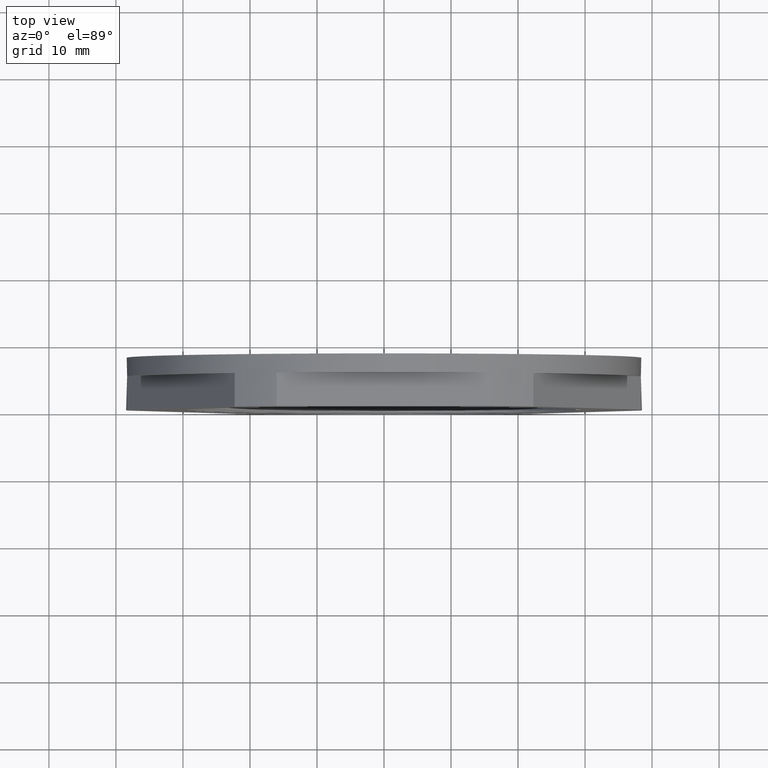
[diagram: clean part render]
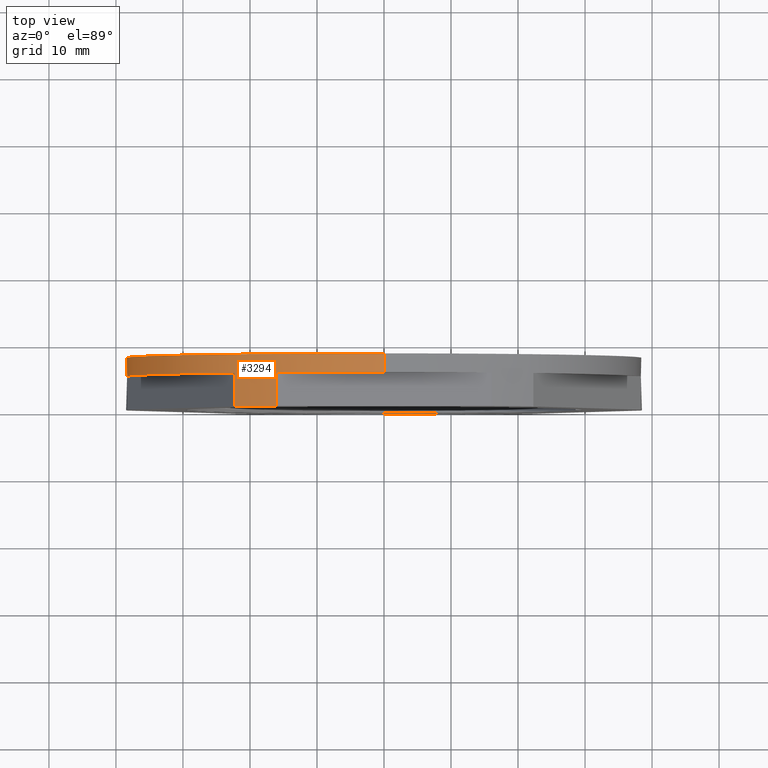
[diagram: same view with one face highlighted and labeled with its STEP entity id]
A machine part, top view. The second image highlights one B-rep face of the part: STEP entity #3294.
In plain terms, the highlighted cylindrical surface (partial cylindrical patch) has radius 38.5 mm, axis along (0, 1, 0).
Its self-contained STEP definition (entity closure, byte-faithful):
#3 = DIRECTION ( 'NONE',  ( 0.0000000000000000000, 0.0000000000000000000, 1.000000000000000000 ) ) ;
#9 = CARTESIAN_POINT ( 'NONE',  ( 0.0000000000000000000, 4.999999999999999100, 0.0000000000000000000 ) ) ;
#38 = DIRECTION ( 'NONE',  ( 0.0000000000000000000, 1.000000000000000000, 0.0000000000000000000 ) ) ;
#277 = DIRECTION ( 'NONE',  ( 0.0000000000000000000, 1.000000000000000000, 0.0000000000000000000 ) ) ;
#281 = DIRECTION ( 'NONE',  ( 0.0000000000000000000, 0.0000000000000000000, 1.000000000000000000 ) ) ;
#287 = DIRECTION ( 'NONE',  ( 0.0000000000000000000, 1.000000000000000000, 0.0000000000000000000 ) ) ;
#296 = DIRECTION ( 'NONE',  ( 0.0000000000000000000, 0.0000000000000000000, 1.000000000000000000 ) ) ;
#299 = DIRECTION ( 'NONE',  ( 0.0000000000000000000, 1.000000000000000000, 0.0000000000000000000 ) ) ;
#300 = CARTESIAN_POINT ( 'NONE',  ( 0.0000000000000000000, 4.999999999999999100, 0.0000000000000000000 ) ) ;
#308 = CARTESIAN_POINT ( 'NONE',  ( 0.0000000000000000000, 4.999999999999999100, 0.0000000000000000000 ) ) ;
#309 = DIRECTION ( 'NONE',  ( 0.0000000000000000000, 0.0000000000000000000, 1.000000000000000000 ) ) ;
#311 = CARTESIAN_POINT ( 'NONE',  ( 0.0000000000000000000, 0.0000000000000000000, 0.0000000000000000000 ) ) ;
#339 = LINE ( 'NONE', #367, #3049 ) ;
#367 = CARTESIAN_POINT ( 'NONE',  ( -22.29138166628270300, 0.0000000000000000000, -31.39019438308905000 ) ) ;
#373 = LINE ( 'NONE', #374, #3053 ) ;
#374 = CARTESIAN_POINT ( 'NONE',  ( -22.29138166628267500, 0.0000000000000000000, 31.39019438308907100 ) ) ;
#375 = CARTESIAN_POINT ( 'NONE',  ( -16.03901493234537400, 0.0000000000000000000, -35.00000000000002800 ) ) ;
#377 = DIRECTION ( 'NONE',  ( 0.0000000000000000000, 1.000000000000000000, 0.0000000000000000000 ) ) ;
#378 = LINE ( 'NONE', #375, #3017 ) ;
#379 = DIRECTION ( 'NONE',  ( -0.0000000000000000000, -1.000000000000000000, -0.0000000000000000000 ) ) ;
#380 = DIRECTION ( 'NONE',  ( -0.0000000000000000000, -1.000000000000000000, -0.0000000000000000000 ) ) ;
#381 = LINE ( 'NONE', #382, #3051 ) ;
#382 = CARTESIAN_POINT ( 'NONE',  ( -38.33039659862806300, 0.0000000000000000000, -3.609805616910968200 ) ) ;
#389 = DIRECTION ( 'NONE',  ( -0.0000000000000000000, -1.000000000000000000, -0.0000000000000000000 ) ) ;
#479 = CARTESIAN_POINT ( 'NONE',  ( 0.0000000000000000000, 0.0000000000000000000, 0.0000000000000000000 ) ) ;
#480 = DIRECTION ( 'NONE',  ( 0.0000000000000000000, 1.000000000000000000, 0.0000000000000000000 ) ) ;
#481 = DIRECTION ( 'NONE',  ( 0.0000000000000000000, 0.0000000000000000000, 1.000000000000000000 ) ) ;
#530 = DIRECTION ( 'NONE',  ( 0.0000000000000000000, 1.000000000000000000, 0.0000000000000000000 ) ) ;
#531 = DIRECTION ( 'NONE',  ( 0.0000000000000000000, 0.0000000000000000000, 1.000000000000000000 ) ) ;
#553 = CARTESIAN_POINT ( 'NONE',  ( 0.0000000000000000000, 7.799999999999999800, 0.0000000000000000000 ) ) ;
#651 = CARTESIAN_POINT ( 'NONE',  ( -38.33039659862807000, 0.0000000000000000000, 3.609805616910920300 ) ) ;
#652 = CARTESIAN_POINT ( 'NONE',  ( 0.0000000000000000000, 0.0000000000000000000, 0.0000000000000000000 ) ) ;
#653 = DIRECTION ( 'NONE',  ( 0.0000000000000000000, 1.000000000000000000, 0.0000000000000000000 ) ) ;
#654 = DIRECTION ( 'NONE',  ( 0.0000000000000000000, 1.000000000000000000, 0.0000000000000000000 ) ) ;
#668 = DIRECTION ( 'NONE',  ( 0.0000000000000000000, 0.0000000000000000000, 1.000000000000000000 ) ) ;
#675 = LINE ( 'NONE', #651, #3062 ) ;
#1163 = FACE_OUTER_BOUND ( 'NONE', #1904, .T. ) ;
#1183 = DIRECTION ( 'NONE',  ( 0.0000000000000000000, 0.0000000000000000000, 1.000000000000000000 ) ) ;
#1196 = CYLINDRICAL_SURFACE ( 'NONE', #3113, 38.50000000000000000 ) ;
#1209 = DIRECTION ( 'NONE',  ( 0.0000000000000000000, 1.000000000000000000, 0.0000000000000000000 ) ) ;
#1214 = CARTESIAN_POINT ( 'NONE',  ( 0.0000000000000000000, 0.0000000000000000000, 0.0000000000000000000 ) ) ;
#1357 = ORIENTED_EDGE ( 'NONE', *, *, #3201, .T. ) ;
#1359 = ORIENTED_EDGE ( 'NONE', *, *, #3178, .T. ) ;
#1364 = ORIENTED_EDGE ( 'NONE', *, *, #3218, .T. ) ;
#1365 = ORIENTED_EDGE ( 'NONE', *, *, #3227, .F. ) ;
#1366 = ORIENTED_EDGE ( 'NONE', *, *, #3214, .T. ) ;
#1368 = ORIENTED_EDGE ( 'NONE', *, *, #3203, .T. ) ;
#1371 = ORIENTED_EDGE ( 'NONE', *, *, #3215, .T. ) ;
#1374 = ORIENTED_EDGE ( 'NONE', *, *, #3223, .T. ) ;
#1375 = ORIENTED_EDGE ( 'NONE', *, *, #3196, .T. ) ;
#1377 = ORIENTED_EDGE ( 'NONE', *, *, #3170, .F. ) ;
#1378 = ORIENTED_EDGE ( 'NONE', *, *, #3216, .T. ) ;
#1379 = ORIENTED_EDGE ( 'NONE', *, *, #3233, .T. ) ;
#1396 = ORIENTED_EDGE ( 'NONE', *, *, #3190, .T. ) ;
#1401 = ORIENTED_EDGE ( 'NONE', *, *, #3199, .T. ) ;
#1532 = CARTESIAN_POINT ( 'NONE',  ( -22.29138166628270300, 4.999999999999999100, -31.39019438308905700 ) ) ;
#1535 = CARTESIAN_POINT ( 'NONE',  ( -22.29138166628266800, 0.0000000000000000000, 31.39019438308907800 ) ) ;
#1550 = CARTESIAN_POINT ( 'NONE',  ( -16.03901493234538800, 4.999999999999999100, 35.00000000000002100 ) ) ;
#1552 = CARTESIAN_POINT ( 'NONE',  ( 0.0000000000000000000, 4.999999999999999100, 38.50000000000000000 ) ) ;
#1554 = CARTESIAN_POINT ( 'NONE',  ( 4.714890176717309500E-015, 7.799999999999999800, -38.50000000000000000 ) ) ;
#1559 = CARTESIAN_POINT ( 'NONE',  ( 4.714890176717309500E-015, 4.999999999999999100, -38.50000000000000000 ) ) ;
#1565 = CARTESIAN_POINT ( 'NONE',  ( -38.33039659862806300, 4.999999999999999100, -3.609805616910964200 ) ) ;
#1575 = CARTESIAN_POINT ( 'NONE',  ( -22.29138166628267500, 4.999999999999999100, 31.39019438308907100 ) ) ;
#1580 = CARTESIAN_POINT ( 'NONE',  ( 0.0000000000000000000, 7.799999999999999800, 38.50000000000000000 ) ) ;
#1583 = CARTESIAN_POINT ( 'NONE',  ( -16.03901493234537400, 4.999999999999999100, -35.00000000000002800 ) ) ;
#1584 = CARTESIAN_POINT ( 'NONE',  ( -16.03901493234539200, 0.0000000000000000000, 35.00000000000002100 ) ) ;
#1585 = CARTESIAN_POINT ( 'NONE',  ( -38.33039659862806300, 4.999999999999999100, 3.609805616910940700 ) ) ;
#1586 = CARTESIAN_POINT ( 'NONE',  ( -38.33039659862806300, 0.0000000000000000000, -3.609805616910968200 ) ) ;
#1590 = CARTESIAN_POINT ( 'NONE',  ( -22.29138166628271400, 0.0000000000000000000, -31.39019438308905000 ) ) ;
#1593 = CARTESIAN_POINT ( 'NONE',  ( -16.03901493234537800, 0.0000000000000000000, -35.00000000000002800 ) ) ;
#1620 = CARTESIAN_POINT ( 'NONE',  ( -38.33039659862806300, 0.0000000000000000000, 3.609805616910937200 ) ) ;
#1655 = CARTESIAN_POINT ( 'NONE',  ( 4.714890176717309500E-015, 0.0000000000000000000, -38.50000000000000000 ) ) ;
#1671 = DIRECTION ( 'NONE',  ( 0.0000000000000000000, 1.000000000000000000, 0.0000000000000000000 ) ) ;
#1682 = LINE ( 'NONE', #1655, #3145 ) ;
#1715 = CARTESIAN_POINT ( 'NONE',  ( 0.0000000000000000000, 4.999999999999999100, 0.0000000000000000000 ) ) ;
#1716 = DIRECTION ( 'NONE',  ( 0.0000000000000000000, 1.000000000000000000, 0.0000000000000000000 ) ) ;
#1717 = DIRECTION ( 'NONE',  ( 0.0000000000000000000, 0.0000000000000000000, 1.000000000000000000 ) ) ;
#1759 = CARTESIAN_POINT ( 'NONE',  ( 0.0000000000000000000, 0.0000000000000000000, 38.50000000000000000 ) ) ;
#1761 = LINE ( 'NONE', #1759, #3026 ) ;
#1770 = DIRECTION ( 'NONE',  ( 0.0000000000000000000, 1.000000000000000000, 0.0000000000000000000 ) ) ;
#1774 = LINE ( 'NONE', #1784, #3034 ) ;
#1784 = CARTESIAN_POINT ( 'NONE',  ( -16.03901493234540300, 0.0000000000000000000, 35.00000000000001400 ) ) ;
#1786 = DIRECTION ( 'NONE',  ( 0.0000000000000000000, 1.000000000000000000, 0.0000000000000000000 ) ) ;
#1888 = VERTEX_POINT ( 'NONE', #1583 ) ;
#1898 = VERTEX_POINT ( 'NONE', #1580 ) ;
#1904 = EDGE_LOOP ( 'NONE', ( #1377, #1359, #1378, #1374, #1366, #1357, #1371, #1401, #1985, #1980, #1364, #1379, #1375, #1368, #1396, #1365 ) ) ;
#1912 = VERTEX_POINT ( 'NONE', #1559 ) ;
#1923 = VERTEX_POINT ( 'NONE', #1532 ) ;
#1942 = VERTEX_POINT ( 'NONE', #1554 ) ;
#1943 = VERTEX_POINT ( 'NONE', #1575 ) ;
#1944 = VERTEX_POINT ( 'NONE', #1584 ) ;
#1946 = VERTEX_POINT ( 'NONE', #1593 ) ;
#1957 = VERTEX_POINT ( 'NONE', #1552 ) ;
#1961 = VERTEX_POINT ( 'NONE', #1590 ) ;
#1962 = VERTEX_POINT ( 'NONE', #1585 ) ;
#1966 = VERTEX_POINT ( 'NONE', #1550 ) ;
#1967 = VERTEX_POINT ( 'NONE', #1535 ) ;
#1970 = VERTEX_POINT ( 'NONE', #1586 ) ;
#1980 = ORIENTED_EDGE ( 'NONE', *, *, #3241, .T. ) ;
#1985 = ORIENTED_EDGE ( 'NONE', *, *, #3235, .T. ) ;
#1996 = VERTEX_POINT ( 'NONE', #1565 ) ;
#1999 = VERTEX_POINT ( 'NONE', #1620 ) ;
#3012 = CIRCLE ( 'NONE', #3014, 38.50000000000000000 ) ;
#3014 = AXIS2_PLACEMENT_3D ( 'NONE', #311, #277, #309 ) ;
#3017 = VECTOR ( 'NONE', #379, 1000.000000000000000 ) ;
#3020 = CIRCLE ( 'NONE', #3021, 38.50000000000000000 ) ;
#3021 = AXIS2_PLACEMENT_3D ( 'NONE', #479, #480, #481 ) ;
#3023 = AXIS2_PLACEMENT_3D ( 'NONE', #308, #287, #296 ) ;
#3026 = VECTOR ( 'NONE', #1770, 1000.000000000000000 ) ;
#3027 = CIRCLE ( 'NONE', #3035, 38.50000000000000000 ) ;
#3034 = VECTOR ( 'NONE', #1786, 1000.000000000000000 ) ;
#3035 = AXIS2_PLACEMENT_3D ( 'NONE', #300, #299, #281 ) ;
#3036 = CIRCLE ( 'NONE', #3023, 38.50000000000000000 ) ;
#3049 = VECTOR ( 'NONE', #377, 1000.000000000000000 ) ;
#3051 = VECTOR ( 'NONE', #380, 1000.000000000000000 ) ;
#3053 = VECTOR ( 'NONE', #389, 1000.000000000000000 ) ;
#3058 = CIRCLE ( 'NONE', #3059, 38.50000000000000000 ) ;
#3059 = AXIS2_PLACEMENT_3D ( 'NONE', #652, #653, #668 ) ;
#3060 = CIRCLE ( 'NONE', #3067, 38.50000000000000000 ) ;
#3062 = VECTOR ( 'NONE', #654, 1000.000000000000000 ) ;
#3067 = AXIS2_PLACEMENT_3D ( 'NONE', #553, #530, #531 ) ;
#3069 = CIRCLE ( 'NONE', #3071, 38.50000000000000000 ) ;
#3071 = AXIS2_PLACEMENT_3D ( 'NONE', #9, #38, #3 ) ;
#3113 = AXIS2_PLACEMENT_3D ( 'NONE', #1214, #1209, #1183 ) ;
#3133 = CIRCLE ( 'NONE', #3154, 38.50000000000000000 ) ;
#3145 = VECTOR ( 'NONE', #1671, 1000.000000000000000 ) ;
#3154 = AXIS2_PLACEMENT_3D ( 'NONE', #1715, #1716, #1717 ) ;
#3170 = EDGE_CURVE ( 'NONE', #1912, #1942, #1682, .T. ) ;
#3178 = EDGE_CURVE ( 'NONE', #1912, #1888, #3133, .T. ) ;
#3190 = EDGE_CURVE ( 'NONE', #1957, #1898, #1761, .T. ) ;
#3196 = EDGE_CURVE ( 'NONE', #1944, #1966, #1774, .T. ) ;
#3199 = EDGE_CURVE ( 'NONE', #1970, #1999, #3012, .T. ) ;
#3201 = EDGE_CURVE ( 'NONE', #1923, #1996, #3027, .T. ) ;
#3203 = EDGE_CURVE ( 'NONE', #1966, #1957, #3036, .T. ) ;
#3214 = EDGE_CURVE ( 'NONE', #1961, #1923, #339, .T. ) ;
#3215 = EDGE_CURVE ( 'NONE', #1996, #1970, #381, .T. ) ;
#3216 = EDGE_CURVE ( 'NONE', #1888, #1946, #378, .T. ) ;
#3218 = EDGE_CURVE ( 'NONE', #1943, #1967, #373, .T. ) ;
#3223 = EDGE_CURVE ( 'NONE', #1946, #1961, #3020, .T. ) ;
#3227 = EDGE_CURVE ( 'NONE', #1942, #1898, #3060, .T. ) ;
#3233 = EDGE_CURVE ( 'NONE', #1967, #1944, #3058, .T. ) ;
#3235 = EDGE_CURVE ( 'NONE', #1999, #1962, #675, .T. ) ;
#3241 = EDGE_CURVE ( 'NONE', #1962, #1943, #3069, .T. ) ;
#3294 = ADVANCED_FACE ( 'NONE', ( #1163 ), #1196, .T. ) ;